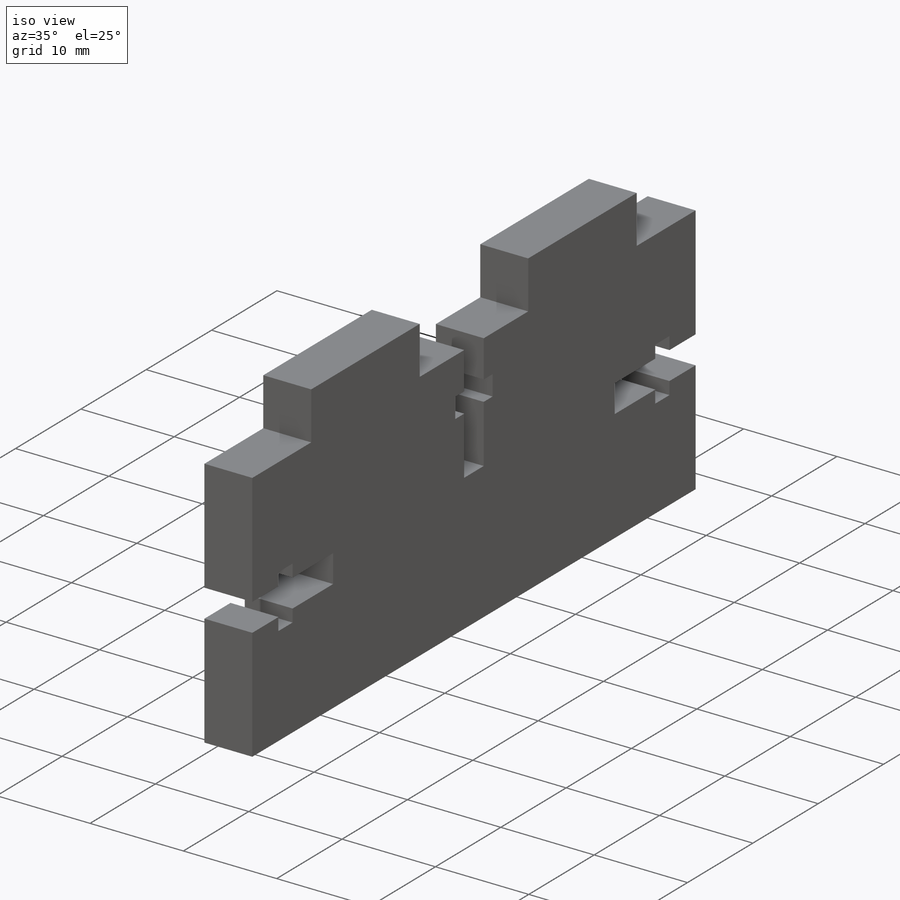
[diagram: iso view]
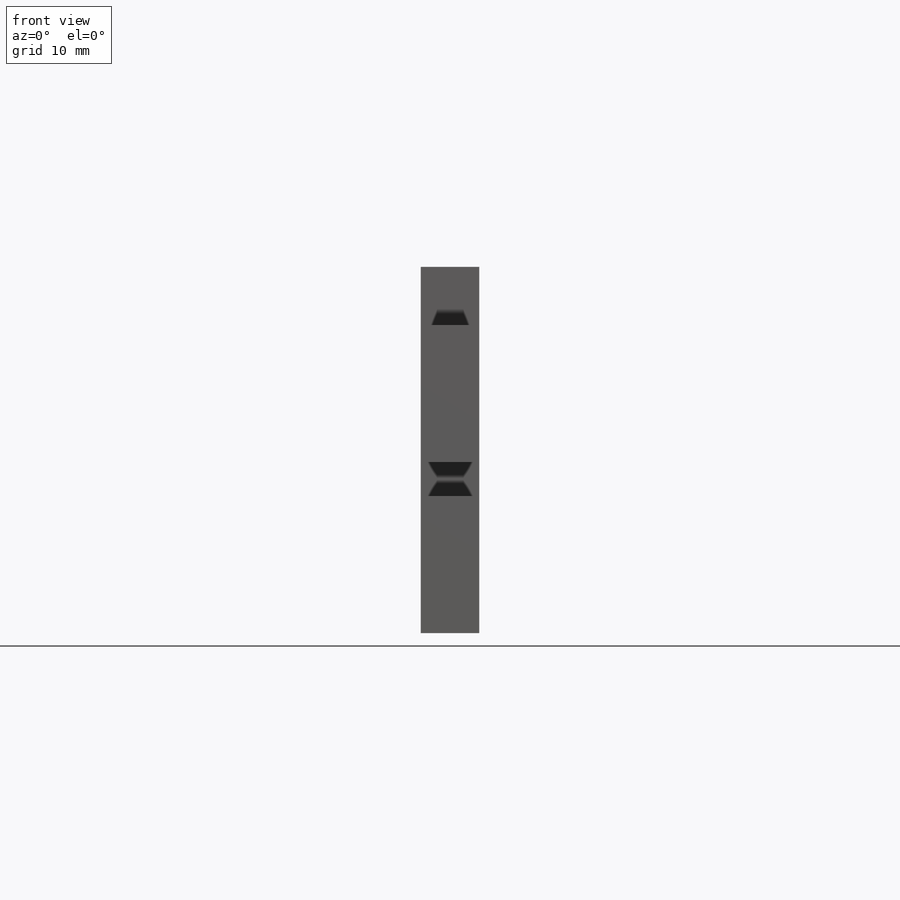
[diagram: front view]
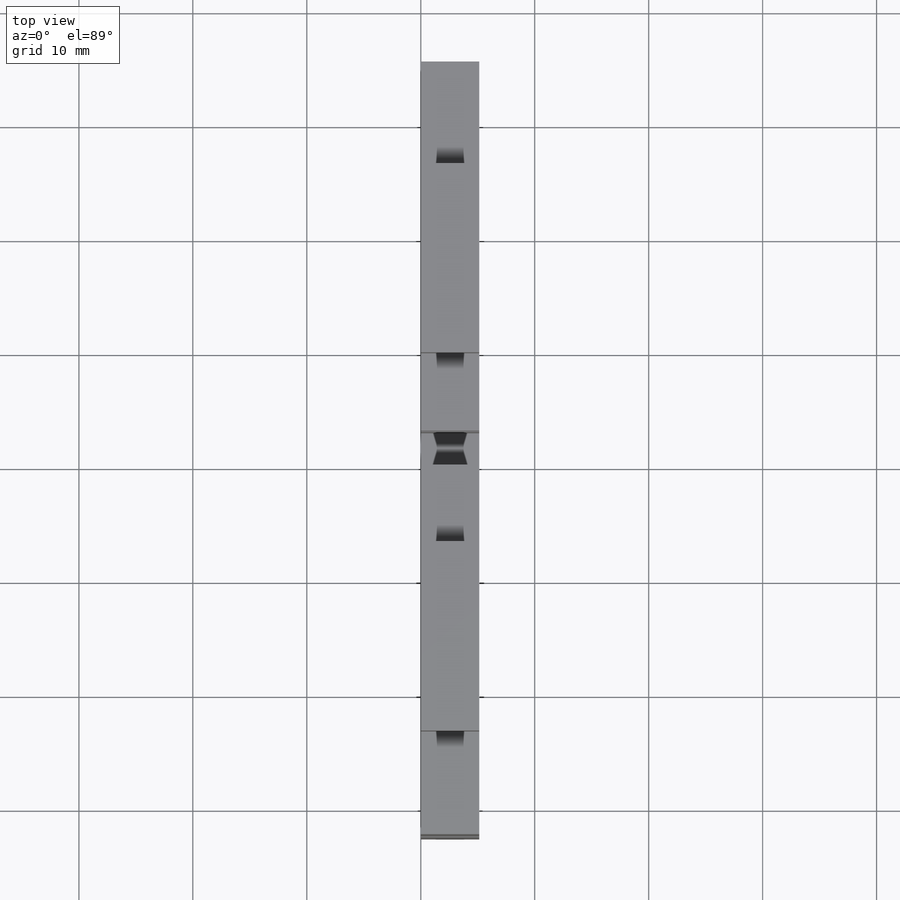
[diagram: top view]
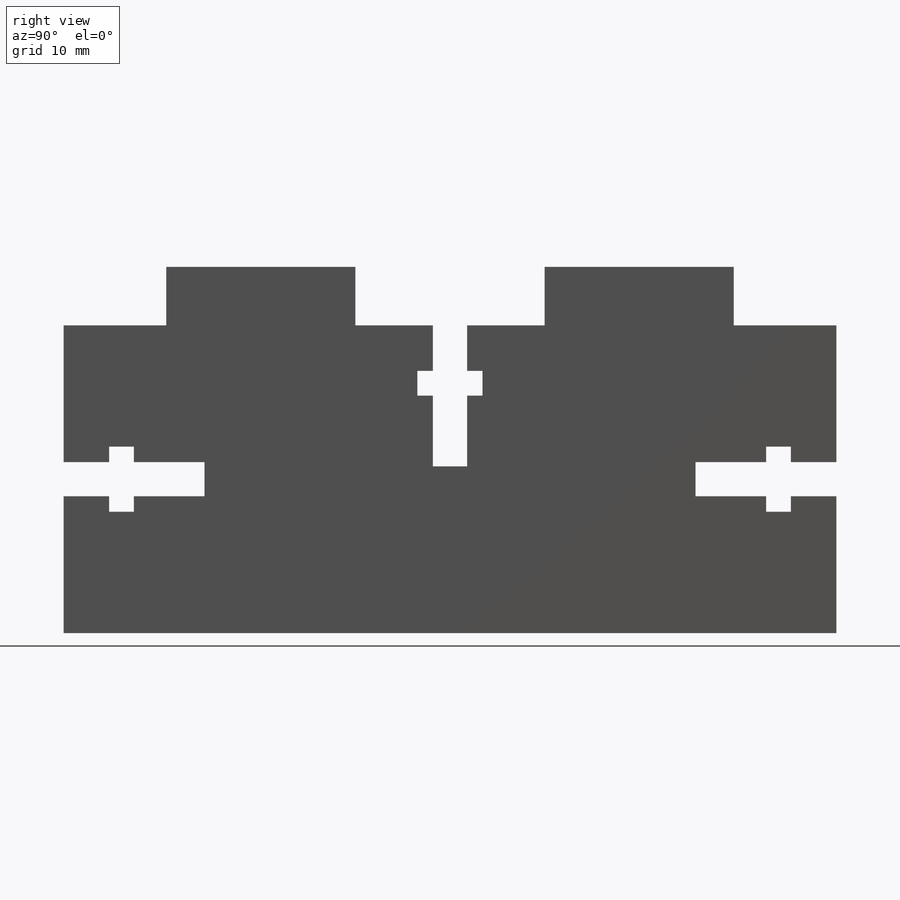
[diagram: right view]
SOLIDWORKS PART (.sldprt)
format: sldprt  version: not decoded by parser v0  size: 246,784 bytes
history: native  units: mm
features: sketch x5, cut_extrude x3, extrude x2, material x1 (+11 scaffold rows collapsed)
feature tree (22):
  scaffold x11  (default folders/planes/origin — collapsed)
  material  "Material <not specified>"
  sketch  "Sketch2"  dims[D1=67.818mm D2=27.0mm]
  extrude  "Boss-Extrude1"  Depth=5.13mm
  sketch  "Sketch3"  dims[c1.D2=~73.093447mm c1.D3=16.6mm c2.D2=49.8mm c2.D4=9.009mm c2.D1=2.0]
  extrude  "Boss-Extrude2"  Depth=5.13mm
  sketch  "Sketch6"  dims[c1.D1=6.207mm c1.D2=~34.201501mm c1.D3=~2.996998mm c2.D1=33.909mm]
  cut_extrude  "Cut-Extrude3"  [1 undecoded]
  sketch  "Sketch4"  dims[c1.D1=3.995mm c1.D2=3.995mm c1.D3=3.995mm c2.D1=11.0015mm c2.D2=2.997mm c2.D3=~2.996998mm c3.D1=13.5mm c3.D2=~2.996998mm c4.D1=13.5mm]
  cut_extrude  "t-slot"  [1 undecoded]
  sketch  "Sketch7"  dims[D1=13.5mm]
  cut_extrude  "Cut-Extrude6"  [1 undecoded]
decode coverage: 7 of 10 modeling features carry decoded parameters
note: ~ marks probable driven/reference dimensions
note: 3 parameter values undecoded
summary: no parameter record found for 3 features
note: suppression state not decoded; provenance and decode notes live in map.json
